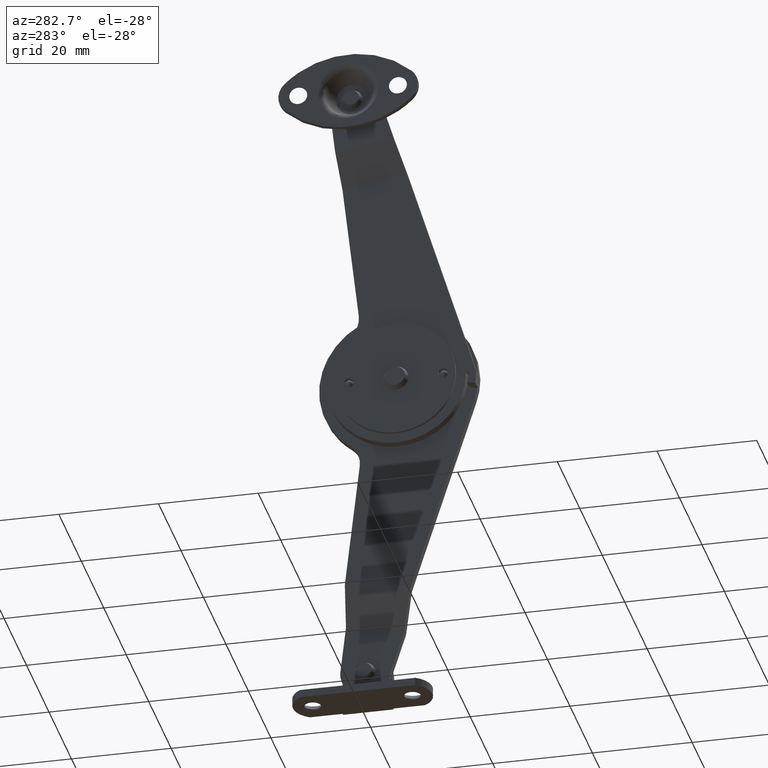
[diagram: clean part render]
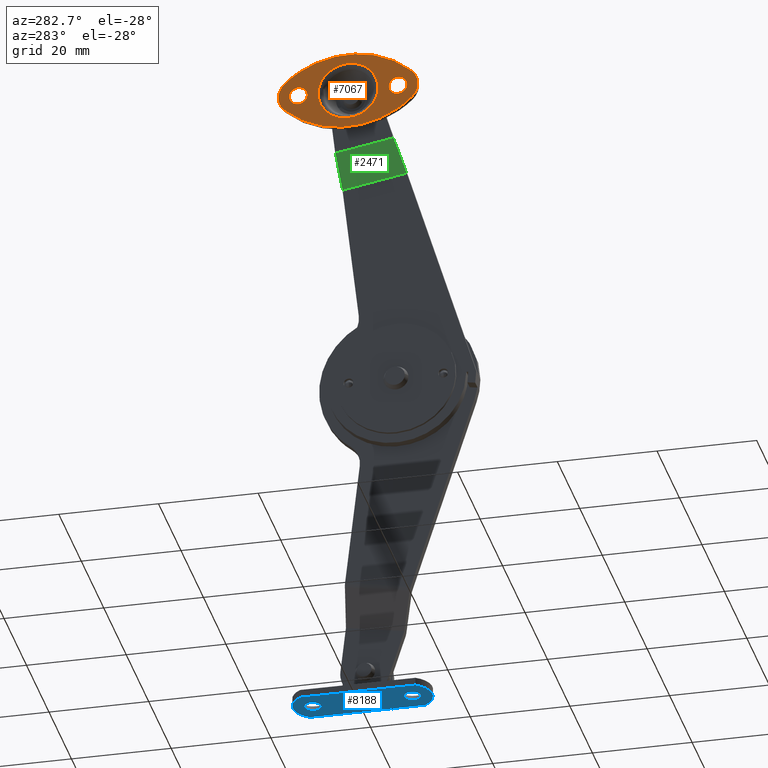
[diagram: same view with three faces highlighted in distinct colors, each labeled with its STEP entity id]
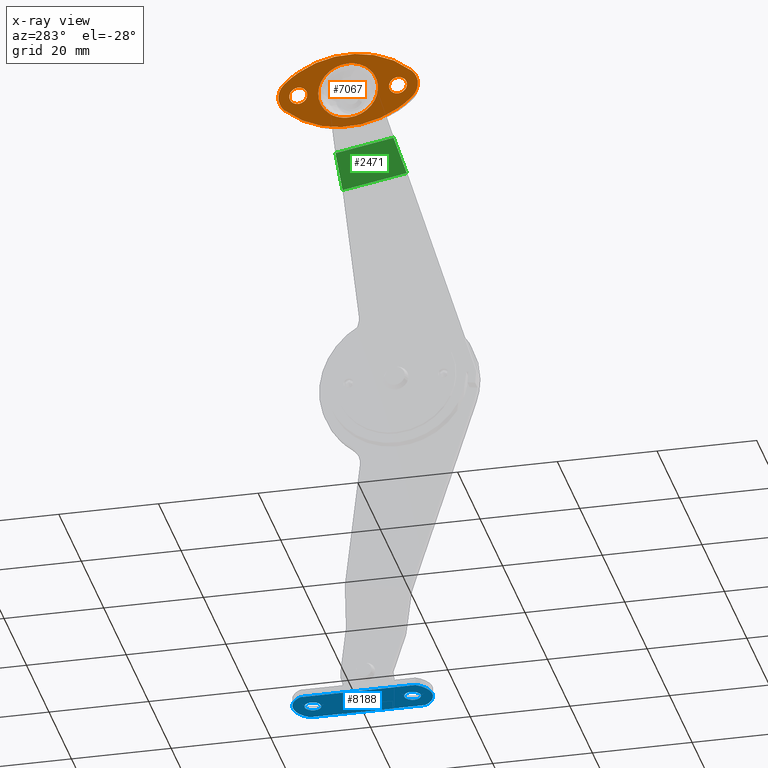
[diagram: x-ray of the same camera — body ghosted, the three highlighted faces saturated]
A machine part, auxiliary view with three faces highlighted in distinct colors.
The next image is the same camera in x-ray (body ghosted, the three faces saturated) — at least one of them is partly hidden behind the body in this view.
Their STEP definitions:

[orange] entity #7067 — the highlighted face is a freeform B-spline surface patch.
#5334=CARTESIAN_POINT('',(0.000000211358955,-8.203357181132347,60.390112137597541));
#5335=VERTEX_POINT('',#5334);
#5341=CARTESIAN_POINT('',(-1.122190E-014,-10.0,58.700000000000003));
#5342=VERTEX_POINT('',#5341);
#5343=CARTESIAN_POINT('',(-1.122190E-014,-10.0,58.700000000000003));
#5344=CARTESIAN_POINT('',(-1.122190E-014,-8.306729982884336,58.700000000000003));
#5345=CARTESIAN_POINT('',(0.000000211358955,-8.203357181132347,60.390112137597541));
#5353=(BOUNDED_CURVE()B_SPLINE_CURVE(2,(#5343,#5344,#5345),.UNSPECIFIED.,.F.,.U.)B_SPLINE_CURVE_WITH_KNOTS((3,3),(0.500000000000000,0.739332870364564),.UNSPECIFIED.)CURVE()GEOMETRIC_REPRESENTATION_ITEM()RATIONAL_B_SPLINE_CURVE((1.0,0.719604100924241,0.976071844762513))REPRESENTATION_ITEM(''));
#5354=EDGE_CURVE('',#5342,#5335,#5353,.T.);
#5356=CARTESIAN_POINT('',(2.253962E-010,-11.787417147471920,60.712461624146101));
#5357=VERTEX_POINT('',#5356);
#5358=CARTESIAN_POINT('',(2.253962E-010,-11.787417147471917,60.712461624146101));
#5359=CARTESIAN_POINT('',(-1.122190E-014,-11.799999999999994,60.606603417129143));
#5360=CARTESIAN_POINT('',(-1.122190E-014,-11.800000000000001,60.500000000000000));
#5361=CARTESIAN_POINT('',(-1.122190E-014,-11.799999999999997,58.700000000000003));
#5362=CARTESIAN_POINT('',(-1.122190E-014,-10.0,58.700000000000003));
#5370=(BOUNDED_CURVE()B_SPLINE_CURVE(2,(#5358,#5359,#5360,#5361,#5362),.UNSPECIFIED.,.F.,.U.)B_SPLINE_CURVE_WITH_KNOTS((3,2,3),(0.229562473187108,0.250000000000000,0.500000000000000),.UNSPECIFIED.)CURVE()GEOMETRIC_REPRESENTATION_ITEM()RATIONAL_B_SPLINE_CURVE((0.956026753543942,0.976055947948744,1.0,0.707106781186547,1.0))REPRESENTATION_ITEM(''));
#5371=EDGE_CURVE('',#5357,#5342,#5370,.T.);
#5415=CARTESIAN_POINT('',(-1.122190E-014,-10.0,62.299999999999997));
#5416=VERTEX_POINT('',#5415);
#5417=CARTESIAN_POINT('',(-1.122190E-014,-10.0,62.299999999999997));
#5418=CARTESIAN_POINT('',(-1.122190E-014,-11.598714143582740,62.299999999999997));
#5419=CARTESIAN_POINT('',(2.253962E-010,-11.787417147471919,60.712461624146108));
#5427=(BOUNDED_CURVE()B_SPLINE_CURVE(2,(#5417,#5418,#5419),.UNSPECIFIED.,.F.,.U.)B_SPLINE_CURVE_WITH_KNOTS((3,3),(0.0,0.229562473187108),.UNSPECIFIED.)CURVE()GEOMETRIC_REPRESENTATION_ITEM()RATIONAL_B_SPLINE_CURVE((1.0,0.731050833237804,0.956026753543942))REPRESENTATION_ITEM(''));
#5428=EDGE_CURVE('',#5416,#5357,#5427,.T.);
#5430=CARTESIAN_POINT('',(0.000000211358955,-8.203357181132347,60.390112137597541));
#5431=CARTESIAN_POINT('',(-1.122190E-014,-8.200000000000001,60.445004546384759));
#5432=CARTESIAN_POINT('',(-1.122190E-014,-8.200000000000001,60.500000000000000));
#5433=CARTESIAN_POINT('',(-1.122190E-014,-8.200000000000001,62.300000000000011));
#5434=CARTESIAN_POINT('',(-1.122190E-014,-10.0,62.299999999999997));
#5442=(BOUNDED_CURVE()B_SPLINE_CURVE(2,(#5430,#5431,#5432,#5433,#5434),.UNSPECIFIED.,.F.,.U.)B_SPLINE_CURVE_WITH_KNOTS((3,2,3),(0.739332870364563,0.750000000000000,1.0),.UNSPECIFIED.)CURVE()GEOMETRIC_REPRESENTATION_ITEM()RATIONAL_B_SPLINE_CURVE((0.976071844762512,0.987502680262306,1.0,0.707106781186547,1.0))REPRESENTATION_ITEM(''));
#5443=EDGE_CURVE('',#5335,#5416,#5442,.T.);
#5520=CARTESIAN_POINT('',(0.000000211358955,11.796642818867420,60.390112137597526));
#5521=VERTEX_POINT('',#5520);
#5527=CARTESIAN_POINT('',(-1.122190E-014,9.999999999999769,58.700000000000003));
#5528=VERTEX_POINT('',#5527);
#5529=CARTESIAN_POINT('',(-1.122190E-014,9.999999999999769,58.700000000000003));
#5530=CARTESIAN_POINT('',(-1.122190E-014,11.693270017115434,58.700000000000003));
#5531=CARTESIAN_POINT('',(0.000000211358955,11.796642818867424,60.390112137597526));
#5539=(BOUNDED_CURVE()B_SPLINE_CURVE(2,(#5529,#5530,#5531),.UNSPECIFIED.,.F.,.U.)B_SPLINE_CURVE_WITH_KNOTS((3,3),(0.500000000000000,0.739332870364564),.UNSPECIFIED.)CURVE()GEOMETRIC_REPRESENTATION_ITEM()RATIONAL_B_SPLINE_CURVE((1.0,0.719604100924241,0.976071844762513))REPRESENTATION_ITEM(''));
#5540=EDGE_CURVE('',#5528,#5521,#5539,.T.);
#5542=CARTESIAN_POINT('',(2.253969E-010,8.212582852527845,60.712461624146101));
#5543=VERTEX_POINT('',#5542);
#5544=CARTESIAN_POINT('',(2.253969E-010,8.212582852527845,60.712461624146094));
#5545=CARTESIAN_POINT('',(-1.122190E-014,8.199999999999770,60.606603417129136));
#5546=CARTESIAN_POINT('',(-1.122190E-014,8.199999999999770,60.500000000000000));
#5547=CARTESIAN_POINT('',(-1.122190E-014,8.199999999999770,58.700000000000003));
#5548=CARTESIAN_POINT('',(-1.122190E-014,9.999999999999769,58.700000000000003));
#5556=(BOUNDED_CURVE()B_SPLINE_CURVE(2,(#5544,#5545,#5546,#5547,#5548),.UNSPECIFIED.,.F.,.U.)B_SPLINE_CURVE_WITH_KNOTS((3,2,3),(0.229562473187109,0.250000000000000,0.500000000000000),.UNSPECIFIED.)CURVE()GEOMETRIC_REPRESENTATION_ITEM()RATIONAL_B_SPLINE_CURVE((0.956026753543943,0.976055947948744,1.0,0.707106781186547,1.0))REPRESENTATION_ITEM(''));
#5557=EDGE_CURVE('',#5543,#5528,#5556,.T.);
#5601=CARTESIAN_POINT('',(-1.122190E-014,9.999999999999769,62.299999999999997));
#5602=VERTEX_POINT('',#5601);
#5603=CARTESIAN_POINT('',(-1.122190E-014,9.999999999999769,62.299999999999997));
#5604=CARTESIAN_POINT('',(-1.122190E-014,8.401285856417022,62.299999999999997));
#5605=CARTESIAN_POINT('',(2.253969E-010,8.212582852527845,60.712461624146094));
#5613=(BOUNDED_CURVE()B_SPLINE_CURVE(2,(#5603,#5604,#5605),.UNSPECIFIED.,.F.,.U.)B_SPLINE_CURVE_WITH_KNOTS((3,3),(0.0,0.229562473187109),.UNSPECIFIED.)CURVE()GEOMETRIC_REPRESENTATION_ITEM()RATIONAL_B_SPLINE_CURVE((1.0,0.731050833237803,0.956026753543943))REPRESENTATION_ITEM(''));
#5614=EDGE_CURVE('',#5602,#5543,#5613,.T.);
#5616=CARTESIAN_POINT('',(0.000000211358955,11.796642818867424,60.390112137597526));
#5617=CARTESIAN_POINT('',(-1.122190E-014,11.799999999999773,60.445004546384752));
#5618=CARTESIAN_POINT('',(-1.122190E-014,11.799999999999770,60.500000000000000));
#5619=CARTESIAN_POINT('',(-1.122190E-014,11.799999999999770,62.300000000000011));
#5620=CARTESIAN_POINT('',(-1.122190E-014,9.999999999999769,62.299999999999997));
#5628=(BOUNDED_CURVE()B_SPLINE_CURVE(2,(#5616,#5617,#5618,#5619,#5620),.UNSPECIFIED.,.F.,.U.)B_SPLINE_CURVE_WITH_KNOTS((3,2,3),(0.739332870364563,0.750000000000000,1.0),.UNSPECIFIED.)CURVE()GEOMETRIC_REPRESENTATION_ITEM()RATIONAL_B_SPLINE_CURVE((0.976071844762511,0.987502680262305,1.0,0.707106781186547,1.0))REPRESENTATION_ITEM(''));
#5629=EDGE_CURVE('',#5521,#5602,#5628,.T.);
#5888=CARTESIAN_POINT('',(2.317429E-016,2.414731513268623,55.007361356610431));
#5889=VERTEX_POINT('',#5888);
#5903=CARTESIAN_POINT('',(0.0,1.491440E-030,54.499999362757407));
#5904=VERTEX_POINT('',#5903);
#5905=CARTESIAN_POINT('',(2.317429E-016,2.414731513268623,55.007361356610431));
#5906=CARTESIAN_POINT('',(0.0,1.260666960816830,54.499999362757414));
#5907=CARTESIAN_POINT('',(0.0,1.491440E-030,54.499999362757407));
#5915=(BOUNDED_CURVE()B_SPLINE_CURVE(2,(#5905,#5906,#5907),.UNSPECIFIED.,.F.,.U.)B_SPLINE_CURVE_WITH_KNOTS((3,3),(0.431662010392564,0.500000000000000),.UNSPECIFIED.)CURVE()GEOMETRIC_REPRESENTATION_ITEM()RATIONAL_B_SPLINE_CURVE((0.883644850198353,0.919937065026551,1.0))REPRESENTATION_ITEM(''));
#5916=EDGE_CURVE('',#5889,#5904,#5915,.T.);
#5918=CARTESIAN_POINT('',(0.0,1.491440E-030,66.500000637242593));
#5919=VERTEX_POINT('',#5918);
#5920=CARTESIAN_POINT('',(0.0,1.491440E-030,54.499999362757407));
#5921=CARTESIAN_POINT('',(0.0,-6.000000637242591,54.499999362757414));
#5922=CARTESIAN_POINT('',(0.0,-6.000000637242590,60.500000000000000));
#5923=CARTESIAN_POINT('',(0.0,-6.000000637242591,66.500000637242593));
#5924=CARTESIAN_POINT('',(0.0,1.491440E-030,66.500000637242593));
#5932=(BOUNDED_CURVE()B_SPLINE_CURVE(2,(#5920,#5921,#5922,#5923,#5924),.UNSPECIFIED.,.F.,.U.)B_SPLINE_CURVE_WITH_KNOTS((3,2,3),(0.500000000000000,0.750000000000000,1.0),.UNSPECIFIED.)CURVE()GEOMETRIC_REPRESENTATION_ITEM()RATIONAL_B_SPLINE_CURVE((1.0,0.707106781186547,1.0,0.707106781186547,1.0))REPRESENTATION_ITEM(''));
#5933=EDGE_CURVE('',#5904,#5919,#5932,.T.);
#5935=CARTESIAN_POINT('',(2.018784E-016,5.829791010839333,61.918994132454323));
#5936=VERTEX_POINT('',#5935);
#5937=CARTESIAN_POINT('',(0.0,1.491440E-030,66.500000637242593));
#5938=CARTESIAN_POINT('',(0.0,4.714755959126322,66.500000637242579));
#5939=CARTESIAN_POINT('',(2.018784E-016,5.829791010839332,61.918994132454316));
#5947=(BOUNDED_CURVE()B_SPLINE_CURVE(2,(#5937,#5938,#5939),.UNSPECIFIED.,.F.,.U.)B_SPLINE_CURVE_WITH_KNOTS((3,3),(0.0,0.209598322253494),.UNSPECIFIED.)CURVE()GEOMETRIC_REPRESENTATION_ITEM()RATIONAL_B_SPLINE_CURVE((1.0,0.754440290949099,0.920631806139198))REPRESENTATION_ITEM(''));
#5948=EDGE_CURVE('',#5919,#5936,#5947,.T.);
#6046=CARTESIAN_POINT('',(2.018784E-016,5.829791010839332,61.918994132454316));
#6047=CARTESIAN_POINT('',(0.0,6.000000637242589,61.219705465854773));
#6048=CARTESIAN_POINT('',(0.0,6.000000637242590,60.500000000000000));
#6049=CARTESIAN_POINT('',(0.0,6.000000637242591,56.583555032011112));
#6050=CARTESIAN_POINT('',(2.317429E-016,2.414731513268623,55.007361356610431));
#6058=(BOUNDED_CURVE()B_SPLINE_CURVE(2,(#6046,#6047,#6048,#6049,#6050),.UNSPECIFIED.,.F.,.U.)B_SPLINE_CURVE_WITH_KNOTS((3,2,3),(0.209598322253494,0.250000000000000,0.431662010392563),.UNSPECIFIED.)CURVE()GEOMETRIC_REPRESENTATION_ITEM()RATIONAL_B_SPLINE_CURVE((0.920631806139198,0.952666490237448,1.0,0.787169716159997,0.883644850198353))REPRESENTATION_ITEM(''));
#6059=EDGE_CURVE('',#5936,#5889,#6058,.T.);
#6822=CARTESIAN_POINT('',(0.0,-12.758617123849641,63.396555215380587));
#6823=VERTEX_POINT('',#6822);
#6829=CARTESIAN_POINT('',(0.0,-12.758616721199980,57.603444496382103));
#6830=VERTEX_POINT('',#6829);
#6831=CARTESIAN_POINT('',(0.0,-12.758616721199980,57.603444496382103));
#6832=CARTESIAN_POINT('',(0.0,-13.999998855877655,58.785710790368512));
#6833=CARTESIAN_POINT('',(0.0,-13.999998975029129,60.499999351728952));
#6834=CARTESIAN_POINT('',(0.0,-13.999999094180607,62.214287913089372));
#6835=CARTESIAN_POINT('',(0.0,-12.758617123849641,63.396555215380587));
#6843=(BOUNDED_CURVE()B_SPLINE_CURVE(2,(#6831,#6832,#6833,#6834,#6835),.UNSPECIFIED.,.F.,.U.)B_SPLINE_CURVE_WITH_KNOTS((3,2,3),(0.0,0.500000000000000,1.0),.UNSPECIFIED.)CURVE()GEOMETRIC_REPRESENTATION_ITEM()RATIONAL_B_SPLINE_CURVE((1.0,0.919144843556742,1.0,0.919144843556742,1.0))REPRESENTATION_ITEM(''));
#6844=EDGE_CURVE('',#6830,#6823,#6843,.T.);
#6884=CARTESIAN_POINT('',(0.0,12.758620084382461,57.603447699412207));
#6885=VERTEX_POINT('',#6884);
#6886=CARTESIAN_POINT('',(0.0,12.758620084382461,57.603447699412207));
#6887=CARTESIAN_POINT('',(0.0,0.000003206843158,45.452385105824156));
#6888=CARTESIAN_POINT('',(0.0,-12.758616721199999,57.603444496382068));
#6896=(BOUNDED_CURVE()B_SPLINE_CURVE(2,(#6886,#6887,#6888),.UNSPECIFIED.,.F.,.U.)CURVE()GEOMETRIC_REPRESENTATION_ITEM()QUASI_UNIFORM_CURVE()RATIONAL_B_SPLINE_CURVE((1.0,0.724138048762327,1.0))REPRESENTATION_ITEM(''));
#6897=EDGE_CURVE('',#6885,#6830,#6896,.T.);
#6939=CARTESIAN_POINT('',(0.0,12.758619224957959,63.396553119086697));
#6940=VERTEX_POINT('',#6939);
#6941=CARTESIAN_POINT('',(0.0,12.758619224957970,63.396553119086718));
#6942=CARTESIAN_POINT('',(0.0,13.999999745680187,62.214287153588835));
#6943=CARTESIAN_POINT('',(0.0,13.999999999999730,60.500000593411940));
#6944=CARTESIAN_POINT('',(0.0,14.000000254319261,58.785714033235045));
#6945=CARTESIAN_POINT('',(0.0,12.758620084382461,57.603447699412207));
#6953=(BOUNDED_CURVE()B_SPLINE_CURVE(2,(#6941,#6942,#6943,#6944,#6945),.UNSPECIFIED.,.F.,.U.)B_SPLINE_CURVE_WITH_KNOTS((3,2,3),(0.0,0.500000000000000,1.0),.UNSPECIFIED.)CURVE()GEOMETRIC_REPRESENTATION_ITEM()RATIONAL_B_SPLINE_CURVE((1.0,0.919144959641192,1.0,0.919144959641192,1.0))REPRESENTATION_ITEM(''));
#6954=EDGE_CURVE('',#6940,#6885,#6953,.T.);
#6992=CARTESIAN_POINT('',(0.0,-12.758617123849641,63.396555215380587));
#6993=CARTESIAN_POINT('',(0.0,0.000002048788960,75.547614436182940));
#6994=CARTESIAN_POINT('',(0.0,12.758619224957959,63.396553119086697));
#7002=(BOUNDED_CURVE()B_SPLINE_CURVE(2,(#6992,#6993,#6994),.UNSPECIFIED.,.F.,.U.)CURVE()GEOMETRIC_REPRESENTATION_ITEM()QUASI_UNIFORM_CURVE()RATIONAL_B_SPLINE_CURVE((1.0,0.724138061743976,1.0))REPRESENTATION_ITEM(''));
#7003=EDGE_CURVE('',#6823,#6940,#7002,.T.);
#7038=CARTESIAN_POINT('',(0.0,15.398599894532980,51.700800030287773));
#7039=CARTESIAN_POINT('',(0.0,-15.398599620580891,51.700800030287773));
#7040=CARTESIAN_POINT('',(0.0,15.398599894532980,69.299200413347876));
#7041=CARTESIAN_POINT('',(0.0,-15.398599620580891,69.299200413347862));
#7042=B_SPLINE_SURFACE_WITH_KNOTS('',1,1,((#7038,#7040),(#7039,#7041)),.UNSPECIFIED.,.F.,.F.,.U.,(2,2),(2,2),(0.0,30.797199515113871),(0.0,17.598400383060099),.UNSPECIFIED.);
#7043=ORIENTED_EDGE('',*,*,#7003,.T.);
#7044=ORIENTED_EDGE('',*,*,#6954,.T.);
#7045=ORIENTED_EDGE('',*,*,#6897,.T.);
#7046=ORIENTED_EDGE('',*,*,#6844,.T.);
#7047=EDGE_LOOP('',(#7043,#7044,#7045,#7046));
#7048=FACE_OUTER_BOUND('',#7047,.T.);
#7049=ORIENTED_EDGE('',*,*,#5933,.F.);
#7050=ORIENTED_EDGE('',*,*,#5916,.F.);
#7051=ORIENTED_EDGE('',*,*,#6059,.F.);
#7052=ORIENTED_EDGE('',*,*,#5948,.F.);
#7053=EDGE_LOOP('',(#7049,#7050,#7051,#7052));
#7054=FACE_BOUND('',#7053,.T.);
#7055=ORIENTED_EDGE('',*,*,#5540,.T.);
#7056=ORIENTED_EDGE('',*,*,#5629,.T.);
#7057=ORIENTED_EDGE('',*,*,#5614,.T.);
#7058=ORIENTED_EDGE('',*,*,#5557,.T.);
#7059=EDGE_LOOP('',(#7055,#7056,#7057,#7058));
#7060=FACE_BOUND('',#7059,.T.);
#7061=ORIENTED_EDGE('',*,*,#5354,.T.);
#7062=ORIENTED_EDGE('',*,*,#5443,.T.);
#7063=ORIENTED_EDGE('',*,*,#5428,.T.);
#7064=ORIENTED_EDGE('',*,*,#5371,.T.);
#7065=EDGE_LOOP('',(#7061,#7062,#7063,#7064));
#7066=FACE_BOUND('',#7065,.T.);
#7067=ADVANCED_FACE('',(#7048,#7054,#7060,#7066),#7042,.T.);

[blue] entity #8188 — the highlighted face is a freeform B-spline surface patch.
#7329=CARTESIAN_POINT('',(12.870542490962301,-11.644913600574130,-68.099998000000113));
#7330=VERTEX_POINT('',#7329);
#7336=CARTESIAN_POINT('',(11.350000000000000,-10.0,-68.099998000000099));
#7337=VERTEX_POINT('',#7336);
#7338=CARTESIAN_POINT('',(11.350000000000000,-10.0,-68.099998000000099));
#7339=CARTESIAN_POINT('',(11.349999999999998,-11.525244309214436,-68.099998000000099));
#7340=CARTESIAN_POINT('',(12.870542490962302,-11.644913600574128,-68.099998000000113));
#7348=(BOUNDED_CURVE()B_SPLINE_CURVE(2,(#7338,#7339,#7340),.UNSPECIFIED.,.F.,.U.)B_SPLINE_CURVE_WITH_KNOTS((3,3),(0.0,0.236331300406256),.UNSPECIFIED.)CURVE()GEOMETRIC_REPRESENTATION_ITEM()RATIONAL_B_SPLINE_CURVE((1.0,0.723120658870571,0.969723355699104))REPRESENTATION_ITEM(''));
#7349=EDGE_CURVE('',#7337,#7330,#7348,.T.);
#7351=CARTESIAN_POINT('',(13.129457509037699,-8.355086399425868,-68.099998000000099));
#7352=VERTEX_POINT('',#7351);
#7353=CARTESIAN_POINT('',(13.129457509037696,-8.355086399425868,-68.099998000000099));
#7354=CARTESIAN_POINT('',(13.064828677654454,-8.350000000000001,-68.099998000000099));
#7355=CARTESIAN_POINT('',(13.0,-8.350000000000000,-68.099998000000099));
#7356=CARTESIAN_POINT('',(11.350000000000000,-8.350000000000000,-68.099998000000085));
#7357=CARTESIAN_POINT('',(11.350000000000000,-10.0,-68.099998000000099));
#7365=(BOUNDED_CURVE()B_SPLINE_CURVE(2,(#7353,#7354,#7355,#7356,#7357),.UNSPECIFIED.,.F.,.U.)B_SPLINE_CURVE_WITH_KNOTS((3,2,3),(0.736331300406256,0.750000000000000,1.0),.UNSPECIFIED.)CURVE()GEOMETRIC_REPRESENTATION_ITEM()RATIONAL_B_SPLINE_CURVE((0.969723355699104,0.983986122315976,1.0,0.707106781186548,1.0))REPRESENTATION_ITEM(''));
#7366=EDGE_CURVE('',#7352,#7337,#7365,.T.);
#7403=CARTESIAN_POINT('',(14.650000000000000,-10.0,-68.099998000000099));
#7404=VERTEX_POINT('',#7403);
#7405=CARTESIAN_POINT('',(14.650000000000000,-10.0,-68.099998000000099));
#7406=CARTESIAN_POINT('',(14.650000000000000,-8.474755690785562,-68.099998000000085));
#7407=CARTESIAN_POINT('',(13.129457509037701,-8.355086399425868,-68.099998000000099));
#7415=(BOUNDED_CURVE()B_SPLINE_CURVE(2,(#7405,#7406,#7407),.UNSPECIFIED.,.F.,.U.)B_SPLINE_CURVE_WITH_KNOTS((3,3),(0.500000000000000,0.736331300406256),.UNSPECIFIED.)CURVE()GEOMETRIC_REPRESENTATION_ITEM()RATIONAL_B_SPLINE_CURVE((1.0,0.723120658870571,0.969723355699105))REPRESENTATION_ITEM(''));
#7416=EDGE_CURVE('',#7404,#7352,#7415,.T.);
#7418=CARTESIAN_POINT('',(12.870542490962302,-11.644913600574128,-68.099998000000113));
#7419=CARTESIAN_POINT('',(12.935171322345552,-11.650000000000004,-68.099998000000099));
#7420=CARTESIAN_POINT('',(13.0,-11.650000000000000,-68.099998000000099));
#7421=CARTESIAN_POINT('',(14.649999999999999,-11.650000000000002,-68.099998000000085));
#7422=CARTESIAN_POINT('',(14.650000000000000,-10.0,-68.099998000000099));
#7430=(BOUNDED_CURVE()B_SPLINE_CURVE(2,(#7418,#7419,#7420,#7421,#7422),.UNSPECIFIED.,.F.,.U.)B_SPLINE_CURVE_WITH_KNOTS((3,2,3),(0.236331300406256,0.250000000000000,0.500000000000000),.UNSPECIFIED.)CURVE()GEOMETRIC_REPRESENTATION_ITEM()RATIONAL_B_SPLINE_CURVE((0.969723355699104,0.983986122315976,1.0,0.707106781186548,1.0))REPRESENTATION_ITEM(''));
#7431=EDGE_CURVE('',#7330,#7404,#7430,.T.);
#7657=CARTESIAN_POINT('',(12.870542490962301,8.355086399425868,-68.099998000000099));
#7658=VERTEX_POINT('',#7657);
#7664=CARTESIAN_POINT('',(11.350000000000000,10.0,-68.099998000000099));
#7665=VERTEX_POINT('',#7664);
#7666=CARTESIAN_POINT('',(11.350000000000000,10.0,-68.099998000000099));
#7667=CARTESIAN_POINT('',(11.350000000000000,8.474755690785568,-68.099998000000099));
#7668=CARTESIAN_POINT('',(12.870542490962308,8.355086399425868,-68.099998000000099));
#7676=(BOUNDED_CURVE()B_SPLINE_CURVE(2,(#7666,#7667,#7668),.UNSPECIFIED.,.F.,.U.)B_SPLINE_CURVE_WITH_KNOTS((3,3),(0.0,0.236331300406256),.UNSPECIFIED.)CURVE()GEOMETRIC_REPRESENTATION_ITEM()RATIONAL_B_SPLINE_CURVE((1.0,0.723120658870571,0.969723355699104))REPRESENTATION_ITEM(''));
#7677=EDGE_CURVE('',#7665,#7658,#7676,.T.);
#7679=CARTESIAN_POINT('',(13.129457509037699,11.644913600574130,-68.099998000000099));
#7680=VERTEX_POINT('',#7679);
#7681=CARTESIAN_POINT('',(13.129457509037696,11.644913600574133,-68.099998000000099));
#7682=CARTESIAN_POINT('',(13.064828677654454,11.650000000000007,-68.099998000000099));
#7683=CARTESIAN_POINT('',(13.0,11.650000000000000,-68.099998000000099));
#7684=CARTESIAN_POINT('',(11.350000000000000,11.650000000000002,-68.099998000000085));
#7685=CARTESIAN_POINT('',(11.350000000000000,10.0,-68.099998000000099));
#7693=(BOUNDED_CURVE()B_SPLINE_CURVE(2,(#7681,#7682,#7683,#7684,#7685),.UNSPECIFIED.,.F.,.U.)B_SPLINE_CURVE_WITH_KNOTS((3,2,3),(0.736331300406256,0.750000000000000,1.0),.UNSPECIFIED.)CURVE()GEOMETRIC_REPRESENTATION_ITEM()RATIONAL_B_SPLINE_CURVE((0.969723355699104,0.983986122315976,1.0,0.707106781186548,1.0))REPRESENTATION_ITEM(''));
#7694=EDGE_CURVE('',#7680,#7665,#7693,.T.);
#7731=CARTESIAN_POINT('',(14.650000000000000,10.0,-68.099998000000099));
#7732=VERTEX_POINT('',#7731);
#7733=CARTESIAN_POINT('',(14.650000000000000,10.0,-68.099998000000099));
#7734=CARTESIAN_POINT('',(14.650000000000000,11.525244309214438,-68.099998000000085));
#7735=CARTESIAN_POINT('',(13.129457509037701,11.644913600574130,-68.099998000000099));
#7743=(BOUNDED_CURVE()B_SPLINE_CURVE(2,(#7733,#7734,#7735),.UNSPECIFIED.,.F.,.U.)B_SPLINE_CURVE_WITH_KNOTS((3,3),(0.500000000000000,0.736331300406256),.UNSPECIFIED.)CURVE()GEOMETRIC_REPRESENTATION_ITEM()RATIONAL_B_SPLINE_CURVE((1.0,0.723120658870571,0.969723355699105))REPRESENTATION_ITEM(''));
#7744=EDGE_CURVE('',#7732,#7680,#7743,.T.);
#7746=CARTESIAN_POINT('',(12.870542490962302,8.355086399425868,-68.099998000000099));
#7747=CARTESIAN_POINT('',(12.935171322345555,8.350000000000000,-68.099998000000099));
#7748=CARTESIAN_POINT('',(13.0,8.350000000000000,-68.099998000000099));
#7749=CARTESIAN_POINT('',(14.649999999999999,8.350000000000000,-68.099998000000085));
#7750=CARTESIAN_POINT('',(14.650000000000000,10.0,-68.099998000000099));
#7758=(BOUNDED_CURVE()B_SPLINE_CURVE(2,(#7746,#7747,#7748,#7749,#7750),.UNSPECIFIED.,.F.,.U.)B_SPLINE_CURVE_WITH_KNOTS((3,2,3),(0.236331300406256,0.250000000000000,0.500000000000000),.UNSPECIFIED.)CURVE()GEOMETRIC_REPRESENTATION_ITEM()RATIONAL_B_SPLINE_CURVE((0.969723355699103,0.983986122315976,1.0,0.707106781186548,1.0))REPRESENTATION_ITEM(''));
#7759=EDGE_CURVE('',#7658,#7732,#7758,.T.);
#7961=CARTESIAN_POINT('',(17.300003000000000,5.0,-68.099998000000099));
#7962=VERTEX_POINT('',#7961);
#7987=CARTESIAN_POINT('',(17.300003000000000,-5.0,-68.099998000000099));
#7988=VERTEX_POINT('',#7987);
#8004=CARTESIAN_POINT('',(17.300003000000000,-5.0,-68.099998000000099));
#8005=CARTESIAN_POINT('',(17.300003000000000,5.0,-68.099998000000099));
#8006=QUASI_UNIFORM_CURVE('',1,(#8004,#8005),.UNSPECIFIED.,.F.,.U.);
#8007=EDGE_CURVE('',#7988,#7962,#8006,.T.);
#8115=CARTESIAN_POINT('',(8.270442671244968,-15.398604345306090,-68.099998000000099));
#8116=CARTESIAN_POINT('',(17.729572789262679,-15.398604345306090,-68.099998000000099));
#8117=CARTESIAN_POINT('',(8.270442671244968,15.398605096324760,-68.099998000000099));
#8118=CARTESIAN_POINT('',(17.729572789262679,15.398605096324760,-68.099998000000099));
#8119=B_SPLINE_SURFACE_WITH_KNOTS('',1,1,((#8115,#8117),(#8116,#8118)),.UNSPECIFIED.,.F.,.F.,.U.,(2,2),(2,2),(0.0,9.459130118017711),(0.0,30.797209441630852),.UNSPECIFIED.);
#8120=CARTESIAN_POINT('',(17.300003000000000,-11.551469000000020,-68.099998000000099));
#8121=VERTEX_POINT('',#8120);
#8122=CARTESIAN_POINT('',(17.300003000000000,-5.0,-68.099998000000099));
#8123=CARTESIAN_POINT('',(17.300003000000000,-11.551469000000020,-68.099998000000099));
#8124=QUASI_UNIFORM_CURVE('',1,(#8122,#8123),.UNSPECIFIED.,.F.,.U.);
#8125=EDGE_CURVE('',#7988,#8121,#8124,.T.);
#8126=ORIENTED_EDGE('',*,*,#8125,.T.);
#8127=CARTESIAN_POINT('',(8.700012196842371,-11.551494719696199,-68.099998000000099));
#8128=VERTEX_POINT('',#8127);
#8129=CARTESIAN_POINT('',(8.700012196842389,-11.551494719696191,-68.099998000000099));
#8130=CARTESIAN_POINT('',(10.152893156801360,-14.000012505411432,-68.099998000000099));
#8131=CARTESIAN_POINT('',(13.000014936898380,-14.000003999977690,-68.099998000000099));
#8132=CARTESIAN_POINT('',(15.847136716995401,-13.999995494543949,-68.099998000000099));
#8133=CARTESIAN_POINT('',(17.300003000000000,-11.551469000000020,-68.099998000000099));
#8141=(BOUNDED_CURVE()B_SPLINE_CURVE(2,(#8129,#8130,#8131,#8132,#8133),.UNSPECIFIED.,.F.,.U.)B_SPLINE_CURVE_WITH_KNOTS((3,2,3),(0.0,0.500000000000000,1.0),.UNSPECIFIED.)CURVE()GEOMETRIC_REPRESENTATION_ITEM()RATIONAL_B_SPLINE_CURVE((1.0,0.868992397779672,1.0,0.868992397779672,1.0))REPRESENTATION_ITEM(''));
#8142=EDGE_CURVE('',#8128,#8121,#8141,.T.);
#8143=ORIENTED_EDGE('',*,*,#8142,.F.);
#8144=CARTESIAN_POINT('',(8.700012196842382,11.551494719696160,-68.099998000000099));
#8145=VERTEX_POINT('',#8144);
#8146=CARTESIAN_POINT('',(8.700012196842371,-11.551494719696199,-68.099998000000099));
#8147=CARTESIAN_POINT('',(8.700012196842382,11.551494719696160,-68.099998000000099));
#8148=QUASI_UNIFORM_CURVE('',1,(#8146,#8147),.UNSPECIFIED.,.F.,.U.);
#8149=EDGE_CURVE('',#8128,#8145,#8148,.T.);
#8150=ORIENTED_EDGE('',*,*,#8149,.T.);
#8151=CARTESIAN_POINT('',(17.300003032995551,11.551469052911520,-68.099998000000099));
#8152=VERTEX_POINT('',#8151);
#8153=CARTESIAN_POINT('',(17.300003032995580,11.551469052911530,-68.099998000000099));
#8154=CARTESIAN_POINT('',(15.847136693171795,13.999995502705731,-68.099998000000099));
#8155=CARTESIAN_POINT('',(13.000014922565111,14.000003999977730,-68.099998000000099));
#8156=CARTESIAN_POINT('',(10.152893151958420,14.000012497249729,-68.099998000000099));
#8157=CARTESIAN_POINT('',(8.700012196842375,11.551494719696169,-68.099998000000099));
#8165=(BOUNDED_CURVE()B_SPLINE_CURVE(2,(#8153,#8154,#8155,#8156,#8157),.UNSPECIFIED.,.F.,.U.)B_SPLINE_CURVE_WITH_KNOTS((3,2,3),(0.0,0.500000000000000,1.0),.UNSPECIFIED.)CURVE()GEOMETRIC_REPRESENTATION_ITEM()RATIONAL_B_SPLINE_CURVE((1.0,0.868992398488917,1.0,0.868992398488917,1.0))REPRESENTATION_ITEM(''));
#8166=EDGE_CURVE('',#8152,#8145,#8165,.T.);
#8167=ORIENTED_EDGE('',*,*,#8166,.F.);
#8168=CARTESIAN_POINT('',(17.300003032995551,11.551469052911520,-68.099998000000099));
#8169=CARTESIAN_POINT('',(17.300003000000000,5.0,-68.099998000000099));
#8170=QUASI_UNIFORM_CURVE('',1,(#8168,#8169),.UNSPECIFIED.,.F.,.U.);
#8171=EDGE_CURVE('',#8152,#7962,#8170,.T.);
#8172=ORIENTED_EDGE('',*,*,#8171,.T.);
#8173=ORIENTED_EDGE('',*,*,#8007,.F.);
#8174=EDGE_LOOP('',(#8126,#8143,#8150,#8167,#8172,#8173));
#8175=FACE_OUTER_BOUND('',#8174,.T.);
#8176=ORIENTED_EDGE('',*,*,#7744,.T.);
#8177=ORIENTED_EDGE('',*,*,#7694,.T.);
#8178=ORIENTED_EDGE('',*,*,#7677,.T.);
#8179=ORIENTED_EDGE('',*,*,#7759,.T.);
#8180=EDGE_LOOP('',(#8176,#8177,#8178,#8179));
#8181=FACE_BOUND('',#8180,.T.);
#8182=ORIENTED_EDGE('',*,*,#7416,.T.);
#8183=ORIENTED_EDGE('',*,*,#7366,.T.);
#8184=ORIENTED_EDGE('',*,*,#7349,.T.);
#8185=ORIENTED_EDGE('',*,*,#7431,.T.);
#8186=EDGE_LOOP('',(#8182,#8183,#8184,#8185));
#8187=FACE_BOUND('',#8186,.T.);
#8188=ADVANCED_FACE('',(#8175,#8181,#8187),#8119,.F.);

[green] entity #2471 — the highlighted face is a freeform B-spline surface patch.
#2336=CARTESIAN_POINT('',(5.625915208843059,-7.831165108763541,52.026701515213396));
#2337=VERTEX_POINT('',#2336);
#2360=CARTESIAN_POINT('',(5.625915208842949,3.818821705934365,49.972495489978002));
#2361=VERTEX_POINT('',#2360);
#2375=CARTESIAN_POINT('',(5.625915208842949,3.818821705934365,49.972495489978002));
#2376=CARTESIAN_POINT('',(5.625915208843059,-7.831165108763541,52.026701515213396));
#2377=QUASI_UNIFORM_CURVE('',1,(#2375,#2376),.UNSPECIFIED.,.F.,.U.);
#2378=EDGE_CURVE('',#2361,#2337,#2377,.T.);
#2444=CARTESIAN_POINT('',(9.525164273259376,-10.527173733780170,43.120954533864143));
#2445=CARTESIAN_POINT('',(5.616910990071030,-10.527173733780170,52.523743421334324));
#2446=CARTESIAN_POINT('',(8.585983016434916,4.501314044160740,42.730585434395749));
#2447=CARTESIAN_POINT('',(4.677729733246568,4.501314044160740,52.133374321865936));
#2448=B_SPLINE_SURFACE_WITH_KNOTS('',1,1,((#2444,#2446),(#2445,#2447)),.UNSPECIFIED.,.F.,.F.,.U.,(2,2),(2,2),(0.0,10.182675610461400),(0.0,15.062864746080329),.UNSPECIFIED.);
#2449=CARTESIAN_POINT('',(8.499998999999999,3.037120956720985,43.195629294114802));
#2450=VERTEX_POINT('',#2449);
#2451=CARTESIAN_POINT('',(8.499998999999999,3.037120956720985,43.195629294114802));
#2452=CARTESIAN_POINT('',(5.625915208842949,3.818821705934365,49.972495489978002));
#2453=QUASI_UNIFORM_CURVE('',1,(#2451,#2452),.UNSPECIFIED.,.F.,.U.);
#2454=EDGE_CURVE('',#2450,#2361,#2453,.T.);
#2455=ORIENTED_EDGE('',*,*,#2454,.F.);
#2456=CARTESIAN_POINT('',(8.499998999999999,-9.844681273392551,45.467037509238899));
#2457=VERTEX_POINT('',#2456);
#2458=CARTESIAN_POINT('',(8.499998999999999,-9.844681273392551,45.467037509238899));
#2459=CARTESIAN_POINT('',(8.499998999999999,3.037120956720985,43.195629294114802));
#2460=QUASI_UNIFORM_CURVE('',1,(#2458,#2459),.UNSPECIFIED.,.F.,.U.);
#2461=EDGE_CURVE('',#2457,#2450,#2460,.T.);
#2462=ORIENTED_EDGE('',*,*,#2461,.F.);
#2463=CARTESIAN_POINT('',(5.625915208843059,-7.831165108763541,52.026701515213396));
#2464=CARTESIAN_POINT('',(8.499998999999999,-9.844681273392551,45.467037509238899));
#2465=QUASI_UNIFORM_CURVE('',1,(#2463,#2464),.UNSPECIFIED.,.F.,.U.);
#2466=EDGE_CURVE('',#2337,#2457,#2465,.T.);
#2467=ORIENTED_EDGE('',*,*,#2466,.F.);
#2468=ORIENTED_EDGE('',*,*,#2378,.F.);
#2469=EDGE_LOOP('',(#2455,#2462,#2467,#2468));
#2470=FACE_OUTER_BOUND('',#2469,.T.);
#2471=ADVANCED_FACE('',(#2470),#2448,.T.);